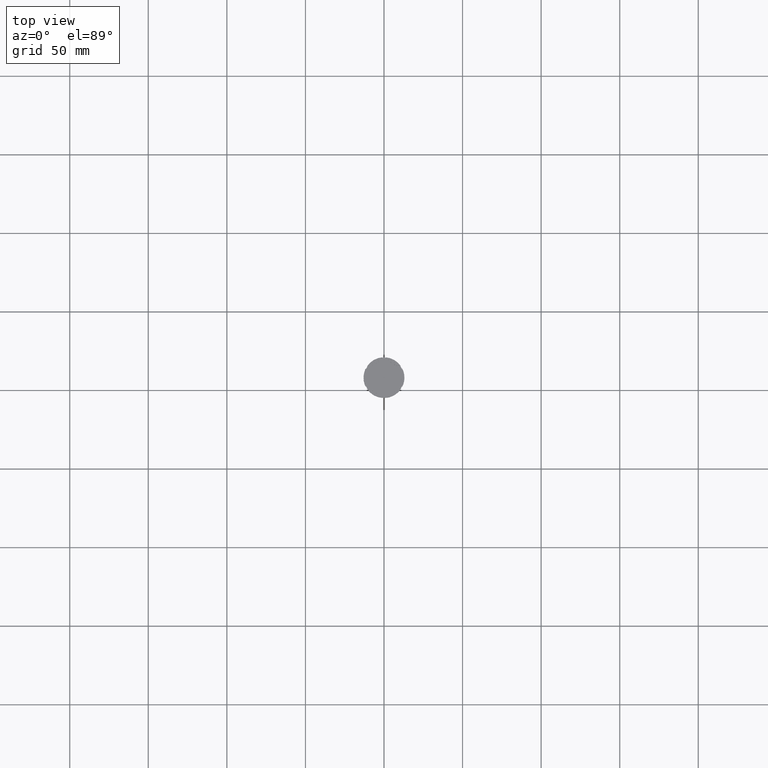
[diagram: clean part render]
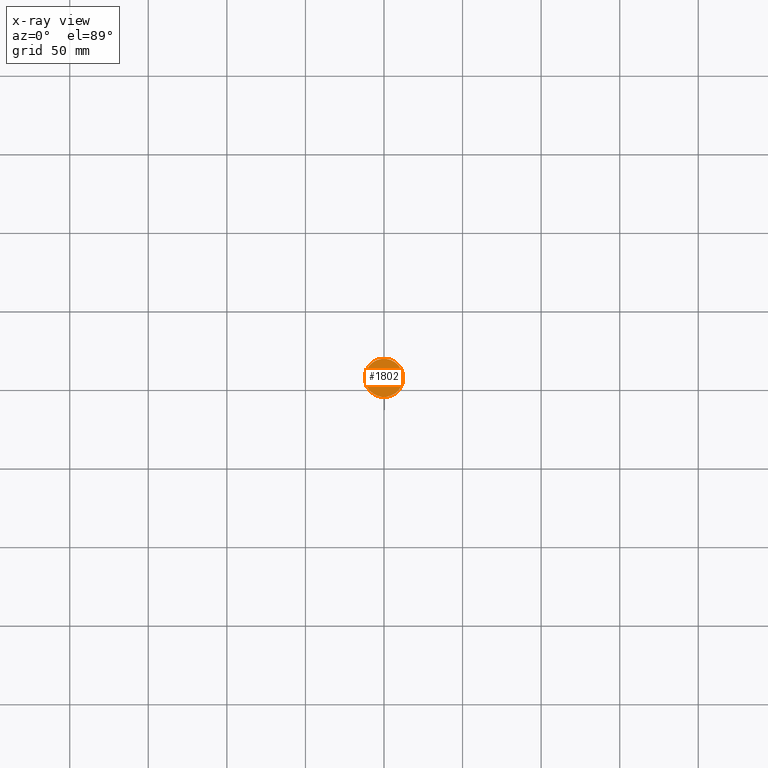
[diagram: x-ray — body ghosted, one internal face saturated and labeled with its STEP entity id]
A machine part, top view, then the same camera in x-ray: the body is ghosted and one INTERNAL B-rep face — a face not visible from any outside direction — is saturated and labeled: STEP entity #1802.
In plain terms, the highlighted planar face has unit normal (0, 0, -1).
Its self-contained STEP definition (entity closure, byte-faithful):
#77 = CARTESIAN_POINT ( 'NONE',  ( 0.000000000000000000, 0.000000000000000000, -12.00000000000000000 ) ) ;
#94 = CIRCLE ( 'NONE', #2142, 12.20000000000000639 ) ;
#276 = CARTESIAN_POINT ( 'NONE',  ( 0.000000000000000000, 0.000000000000000000, -12.00000000000000000 ) ) ;
#305 = DIRECTION ( 'NONE',  ( -1.000000000000000000, 0.000000000000000000, -0.000000000000000000 ) ) ;
#311 = DIRECTION ( 'NONE',  ( -0.000000000000000000, -0.000000000000000000, 1.000000000000000000 ) ) ;
#337 = ORIENTED_EDGE ( 'NONE', *, *, #1656, .T. ) ;
#922 = VERTEX_POINT ( 'NONE', #1200 ) ;
#975 = CARTESIAN_POINT ( 'NONE',  ( 12.20000000000000639, 1.512438796946981880E-15, -12.00000000000000000 ) ) ;
#1140 = DIRECTION ( 'NONE',  ( -0.000000000000000000, -0.000000000000000000, 1.000000000000000000 ) ) ;
#1200 = CARTESIAN_POINT ( 'NONE',  ( -12.20000000000000639, 0.000000000000000000, -12.00000000000000000 ) ) ;
#1401 = VERTEX_POINT ( 'NONE', #975 ) ;
#1587 = AXIS2_PLACEMENT_3D ( 'NONE', #77, #311, #1884 ) ;
#1655 = CARTESIAN_POINT ( 'NONE',  ( 0.000000000000000000, 0.000000000000000000, -12.00000000000000000 ) ) ;
#1656 = EDGE_CURVE ( 'NONE', #922, #1401, #94, .T. ) ;
#1802 = ADVANCED_FACE ( 'NONE', ( #2733 ), #2296, .F. ) ;
#1884 = DIRECTION ( 'NONE',  ( -1.000000000000000000, 0.000000000000000000, 0.000000000000000000 ) ) ;
#1917 = EDGE_CURVE ( 'NONE', #1401, #922, #2846, .T. ) ;
#1944 = EDGE_LOOP ( 'NONE', ( #337, #2310 ) ) ;
#2142 = AXIS2_PLACEMENT_3D ( 'NONE', #276, #1140, #2691 ) ;
#2296 = PLANE ( 'NONE',  #2512 ) ;
#2310 = ORIENTED_EDGE ( 'NONE', *, *, #1917, .T. ) ;
#2512 = AXIS2_PLACEMENT_3D ( 'NONE', #1655, #2532, #305 ) ;
#2532 = DIRECTION ( 'NONE',  ( 0.000000000000000000, 0.000000000000000000, -1.000000000000000000 ) ) ;
#2691 = DIRECTION ( 'NONE',  ( -1.000000000000000000, 0.000000000000000000, 0.000000000000000000 ) ) ;
#2733 = FACE_OUTER_BOUND ( 'NONE', #1944, .T. ) ;
#2846 = CIRCLE ( 'NONE', #1587, 12.20000000000000639 ) ;